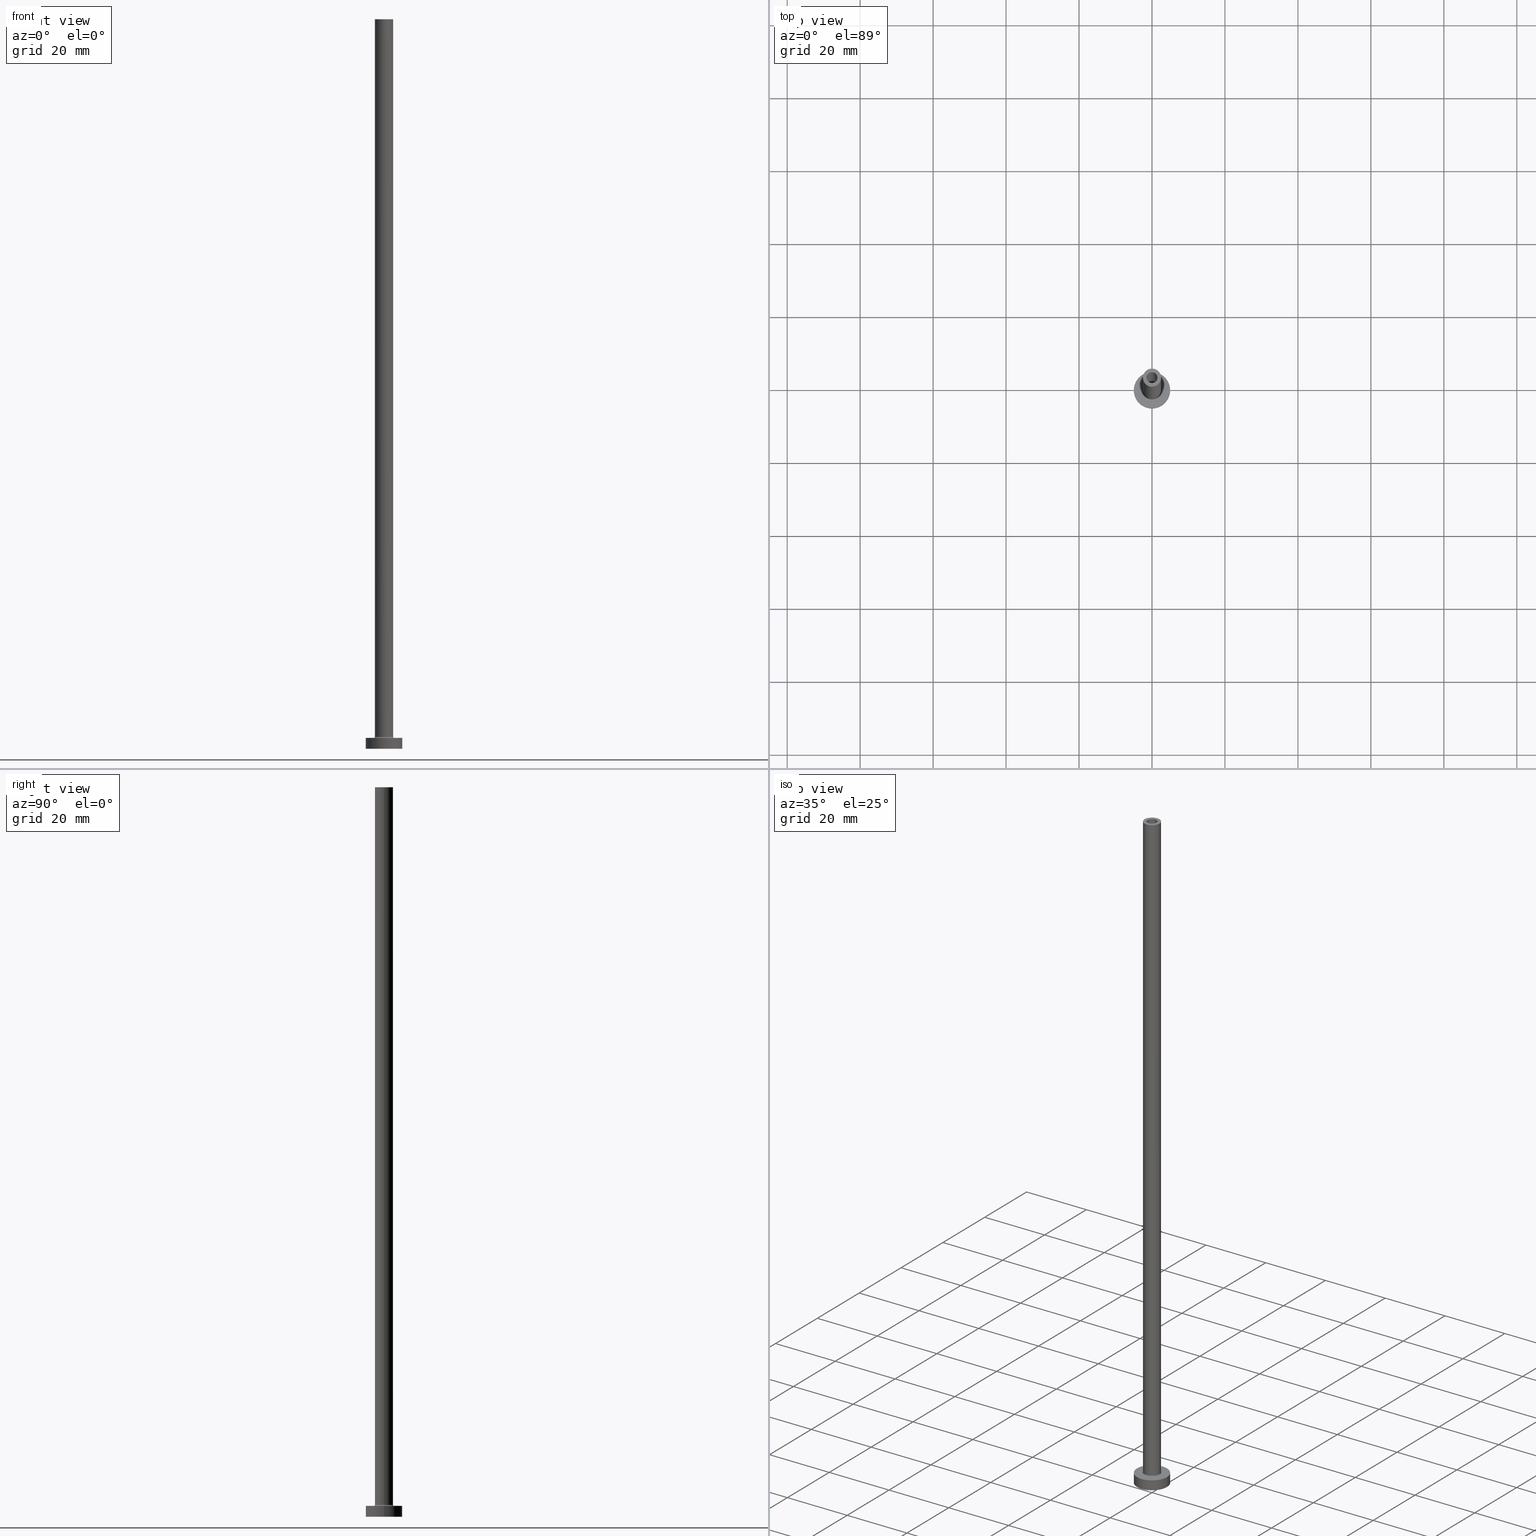
[diagram: canonical four-view strip — front | top / right | iso, engineering-drawing reading convention]
A machine part, canonical four-view strip (front | top / right | iso — engineering-drawing reading convention). The complete STEP part file that produces these views, byte-faithful:
ISO-10303-21;
HEADER;
FILE_DESCRIPTION (( 'STEP AP203' ),
    '1' );
FILE_NAME ('cf21.STEP',
    '2023-02-13T12:03:51',
    ( '' ),
    ( '' ),
    'SwSTEP 2.0',
    'SolidWorks 2019',
    '' );
FILE_SCHEMA (( 'CONFIG_CONTROL_DESIGN' ));
ENDSEC;

DATA;
#1 = AXIS2_PLACEMENT_3D ( 'NONE', #430, #114, #4 ) ;
#2 = DIRECTION ( 'NONE',  ( 1.000000000000000000, 0.000000000000000000, 0.000000000000000000 ) ) ;
#3 = CARTESIAN_POINT ( 'NONE',  ( 0.000000000000000000, 0.000000000000000000, 3.000000000000000000 ) ) ;
#4 = DIRECTION ( 'NONE',  ( -1.000000000000000000, 0.000000000000000000, 0.000000000000000000 ) ) ;
#5 = CARTESIAN_POINT ( 'NONE',  ( 0.000000000000000000, 0.000000000000000000, 3.000000000000000000 ) ) ;
#6 = DIRECTION ( 'NONE',  ( 0.000000000000000000, 0.000000000000000000, 1.000000000000000000 ) ) ;
#7 = ADVANCED_FACE ( 'NONE', ( #422, #147 ), #37, .T. ) ;
#8 = EDGE_LOOP ( 'NONE', ( #197, #441, #93, #438 ) ) ;
#9 = MECHANICAL_CONTEXT ( 'NONE', #85, 'mechanical' ) ;
#10 = DIRECTION ( 'NONE',  ( 1.000000000000000000, 0.000000000000000000, 0.000000000000000000 ) ) ;
#11 = FACE_OUTER_BOUND ( 'NONE', #173, .T. ) ;
#12 = LOCAL_TIME ( 13, 3, 51.00000000000000000, #58 ) ;
#13 = ORIENTED_EDGE ( 'NONE', *, *, #24, .T. ) ;
#14 = FACE_OUTER_BOUND ( 'NONE', #253, .T. ) ;
#15 = APPROVAL_ROLE ( '' ) ;
#16 = EDGE_LOOP ( 'NONE', ( #229, #68 ) ) ;
#17 = CALENDAR_DATE ( 2023, 13, 2 ) ;
#18 = CARTESIAN_POINT ( 'NONE',  ( 1.650000000000000133, 2.020667218593132508E-16, 0.000000000000000000 ) ) ;
#19 = AXIS2_PLACEMENT_3D ( 'NONE', #320, #354, #179 ) ;
#20 = PERSON_AND_ORGANIZATION_ROLE ( 'creator' ) ;
#21 = LOCAL_TIME ( 13, 3, 51.00000000000000000, #306 ) ;
#22 = PERSON_AND_ORGANIZATION ( #51, #103 ) ;
#23 = ORIENTED_EDGE ( 'NONE', *, *, #454, .T. ) ;
#24 = EDGE_CURVE ( 'NONE', #244, #284, #223, .T. ) ;
#25 = PERSON_AND_ORGANIZATION ( #51, #103 ) ;
#26 = EDGE_LOOP ( 'NONE', ( #59, #83 ) ) ;
#27 = FACE_OUTER_BOUND ( 'NONE', #311, .T. ) ;
#28 = CIRCLE ( 'NONE', #112, 5.000000000000000000 ) ;
#29 = EDGE_CURVE ( 'NONE', #327, #166, #248, .T. ) ;
#30 = APPLICATION_CONTEXT ( 'configuration controlled 3d designs of mechanical parts and assemblies' ) ;
#31 = ORIENTED_EDGE ( 'NONE', *, *, #310, .T. ) ;
#32 = VECTOR ( 'NONE', #241, 1000.000000000000000 ) ;
#33 = CARTESIAN_POINT ( 'NONE',  ( -2.500000000000000000, 0.000000000000000000, 3.299999999999997158 ) ) ;
#34 = CARTESIAN_POINT ( 'NONE',  ( 0.000000000000000000, 0.000000000000000000, 155.0000000000000284 ) ) ;
#35 = ADVANCED_FACE ( 'NONE', ( #144 ), #291, .T. ) ;
#36 = DIRECTION ( 'NONE',  ( 0.000000000000000000, 0.000000000000000000, 1.000000000000000000 ) ) ;
#37 = PLANE ( 'NONE',  #46 ) ;
#38 = VERTEX_POINT ( 'NONE', #258 ) ;
#39 = AXIS2_PLACEMENT_3D ( 'NONE', #254, #74, #294 ) ;
#40 = DIRECTION ( 'NONE',  ( 1.000000000000000000, 0.000000000000000000, 0.000000000000000000 ) ) ;
#41 = DIRECTION ( 'NONE',  ( -1.000000000000000000, 1.224646799147353207E-16, 0.000000000000000000 ) ) ;
#42 = EDGE_CURVE ( 'NONE', #382, #338, #297, .T. ) ;
#43 =( LENGTH_UNIT ( ) NAMED_UNIT ( * ) SI_UNIT ( .MILLI., .METRE. ) );
#44 = DIRECTION ( 'NONE',  ( 0.000000000000000000, 0.000000000000000000, 1.000000000000000000 ) ) ;
#45 = DIRECTION ( 'NONE',  ( 0.000000000000000000, 0.000000000000000000, -1.000000000000000000 ) ) ;
#46 = AXIS2_PLACEMENT_3D ( 'NONE', #5, #261, #459 ) ;
#47 = DIRECTION ( 'NONE',  ( 0.000000000000000000, 0.000000000000000000, -1.000000000000000000 ) ) ;
#48 = VERTEX_POINT ( 'NONE', #81 ) ;
#49 = EDGE_CURVE ( 'NONE', #105, #439, #456, .T. ) ;
#50 = CIRCLE ( 'NONE', #313, 1.650000000000000133 ) ;
#51 = PERSON ( 'NEUR�EN�', 'NEUR�EN�', 'NEUR�EN�', ('NEUR�EN�'), ('NEUR�EN�'), ('NEUR�EN�') ) ;
#52 = ORIENTED_EDGE ( 'NONE', *, *, #24, .F. ) ;
#53 = DIRECTION ( 'NONE',  ( -1.000000000000000000, 0.000000000000000000, 0.000000000000000000 ) ) ;
#54 = APPROVAL_DATE_TIME ( #87, #132 ) ;
#55 = CIRCLE ( 'NONE', #174, 0.2999999999999999334 ) ;
#56 = AXIS2_PLACEMENT_3D ( 'NONE', #353, #417, #70 ) ;
#57 = APPROVAL_PERSON_ORGANIZATION ( #159, #71, #15 ) ;
#58 = COORDINATED_UNIVERSAL_TIME_OFFSET ( 1, 0, .AHEAD. ) ;
#59 = ORIENTED_EDGE ( 'NONE', *, *, #287, .F. ) ;
#60 = ORIENTED_EDGE ( 'NONE', *, *, #162, .T. ) ;
#61 = FACE_OUTER_BOUND ( 'NONE', #333, .T. ) ;
#62 = EDGE_CURVE ( 'NONE', #90, #38, #55, .T. ) ;
#63 = LINE ( 'NONE', #193, #32 ) ;
#64 = LINE ( 'NONE', #337, #235 ) ;
#65 = AXIS2_PLACEMENT_3D ( 'NONE', #34, #288, #111 ) ;
#66 = DIRECTION ( 'NONE',  ( 0.000000000000000000, 0.000000000000000000, 1.000000000000000000 ) ) ;
#67 = ORIENTED_EDGE ( 'NONE', *, *, #400, .T. ) ;
#68 = ORIENTED_EDGE ( 'NONE', *, *, #381, .T. ) ;
#69 = PRODUCT ( 'cf21', 'cf21', '', ( #9 ) ) ;
#70 = DIRECTION ( 'NONE',  ( -1.000000000000000000, 0.000000000000000000, 0.000000000000000000 ) ) ;
#71 = APPROVAL ( #308, 'NEUR�EN�' ) ;
#72 = TOROIDAL_SURFACE ( 'NONE', #425, 2.799999999999999822, 0.2999999999999999889 ) ;
#73 = ORIENTED_EDGE ( 'NONE', *, *, #310, .F. ) ;
#74 = DIRECTION ( 'NONE',  ( 0.000000000000000000, 0.000000000000000000, 1.000000000000000000 ) ) ;
#75 = DIRECTION ( 'NONE',  ( 1.000000000000000000, 0.000000000000000000, 0.000000000000000000 ) ) ;
#76 = CARTESIAN_POINT ( 'NONE',  ( 1.500000000000000222, 1.836970198721029934E-16, 200.0000000000000000 ) ) ;
#77 = DIRECTION ( 'NONE',  ( 1.000000000000000000, 0.000000000000000000, -0.000000000000000000 ) ) ;
#78 = ADVANCED_FACE ( 'NONE', ( #185, #120 ), #263, .F. ) ;
#79 = DIRECTION ( 'NONE',  ( 0.000000000000000000, 0.000000000000000000, -1.000000000000000000 ) ) ;
#80 = VERTEX_POINT ( 'NONE', #352 ) ;
#81 = CARTESIAN_POINT ( 'NONE',  ( 2.500000000000000000, 3.061616997868383141E-16, 3.299999999999997158 ) ) ;
#82 = CARTESIAN_POINT ( 'NONE',  ( 0.000000000000000000, 0.000000000000000000, 3.299999999999997158 ) ) ;
#83 = ORIENTED_EDGE ( 'NONE', *, *, #155, .F. ) ;
#84 = DIRECTION ( 'NONE',  ( 0.000000000000000000, 0.000000000000000000, 1.000000000000000000 ) ) ;
#85 = APPLICATION_CONTEXT ( 'configuration controlled 3d designs of mechanical parts and assemblies' ) ;
#86 = ORIENTED_EDGE ( 'NONE', *, *, #62, .T. ) ;
#87 = DATE_AND_TIME ( #17, #104 ) ;
#88 = CARTESIAN_POINT ( 'NONE',  ( -2.500000000000000000, 0.000000000000000000, 200.0000000000000000 ) ) ;
#89 = DIRECTION ( 'NONE',  ( 1.000000000000000000, 0.000000000000000000, 0.000000000000000000 ) ) ;
#90 = VERTEX_POINT ( 'NONE', #33 ) ;
#91 = CALENDAR_DATE ( 2023, 13, 2 ) ;
#92 = AXIS2_PLACEMENT_3D ( 'NONE', #447, #36, #323 ) ;
#93 = ORIENTED_EDGE ( 'NONE', *, *, #135, .T. ) ;
#94 = CARTESIAN_POINT ( 'NONE',  ( -1.650000000000000133, 0.000000000000000000, 159.6669047558312400 ) ) ;
#95 = PERSON_AND_ORGANIZATION ( #51, #103 ) ;
#96 = EDGE_CURVE ( 'NONE', #244, #90, #397, .T. ) ;
#97 = VECTOR ( 'NONE', #79, 1000.000000000000000 ) ;
#98 = CALENDAR_DATE ( 2023, 13, 2 ) ;
#99 = ORIENTED_EDGE ( 'NONE', *, *, #219, .F. ) ;
#100 = ADVANCED_FACE ( 'NONE', ( #124, #365 ), #329, .T. ) ;
#101 = DIRECTION ( 'NONE',  ( 1.000000000000000000, 0.000000000000000000, 0.000000000000000000 ) ) ;
#102 = DIRECTION ( 'NONE',  ( 1.000000000000000000, 0.000000000000000000, -0.000000000000000000 ) ) ;
#103 = ORGANIZATION ( 'NEUR�EN�', 'NEUR�EN�', '' ) ;
#104 = LOCAL_TIME ( 13, 3, 51.00000000000000000, #195 ) ;
#105 = VERTEX_POINT ( 'NONE', #189 ) ;
#106 = EDGE_CURVE ( 'NONE', #305, #38, #215, .T. ) ;
#107 = ORIENTED_EDGE ( 'NONE', *, *, #390, .F. ) ;
#108 = AXIS2_PLACEMENT_3D ( 'NONE', #217, #222, #431 ) ;
#109 = ORIENTED_EDGE ( 'NONE', *, *, #412, .F. ) ;
#110 = APPROVAL_STATUS ( 'not_yet_approved' ) ;
#111 = DIRECTION ( 'NONE',  ( 1.000000000000000000, 0.000000000000000000, 0.000000000000000000 ) ) ;
#112 = AXIS2_PLACEMENT_3D ( 'NONE', #233, #117, #392 ) ;
#113 = SECURITY_CLASSIFICATION ( '', '', #205 ) ;
#114 = DIRECTION ( 'NONE',  ( -0.000000000000000000, -0.000000000000000000, -1.000000000000000000 ) ) ;
#115 = DIRECTION ( 'NONE',  ( -0.000000000000000000, -0.000000000000000000, -1.000000000000000000 ) ) ;
#116 = APPROVAL ( #110, 'NEUR�EN�' ) ;
#117 = DIRECTION ( 'NONE',  ( 0.000000000000000000, 0.000000000000000000, 1.000000000000000000 ) ) ;
#118 = DIRECTION ( 'NONE',  ( 1.000000000000000000, 0.000000000000000000, 0.000000000000000000 ) ) ;
#119 = CARTESIAN_POINT ( 'NONE',  ( -1.500000000000000222, 0.000000000000000000, 200.0000000000000000 ) ) ;
#120 = FACE_OUTER_BOUND ( 'NONE', #324, .T. ) ;
#121 = CIRCLE ( 'NONE', #170, 2.500000000000000000 ) ;
#122 = DIRECTION ( 'NONE',  ( -1.000000000000000000, 0.000000000000000000, 0.000000000000000000 ) ) ;
#123 = ORIENTED_EDGE ( 'NONE', *, *, #282, .F. ) ;
#124 = FACE_BOUND ( 'NONE', #26, .T. ) ;
#125 = VERTEX_POINT ( 'NONE', #298 ) ;
#126 = COORDINATED_UNIVERSAL_TIME_OFFSET ( 1, 0, .AHEAD. ) ;
#127 = EDGE_LOOP ( 'NONE', ( #387, #299, #344, #73 ) ) ;
#128 = ORIENTED_EDGE ( 'NONE', *, *, #162, .F. ) ;
#129 = CIRCLE ( 'NONE', #374, 2.500000000000000000 ) ;
#130 = DIRECTION ( 'NONE',  ( 0.000000000000000000, 0.000000000000000000, -1.000000000000000000 ) ) ;
#131 = PRODUCT_DEFINITION_FORMATION_WITH_SPECIFIED_SOURCE ( 'LIBOVOLN�', '', #69, .NOT_KNOWN. ) ;
#132 = APPROVAL ( #273, 'NEUR�EN�' ) ;
#133 = DIRECTION ( 'NONE',  ( 1.000000000000000000, 0.000000000000000000, 0.000000000000000000 ) ) ;
#134 = PERSON_AND_ORGANIZATION_ROLE ( 'classification_officer' ) ;
#135 = EDGE_CURVE ( 'NONE', #451, #183, #432, .T. ) ;
#136 = AXIS2_PLACEMENT_3D ( 'NONE', #413, #161, #207 ) ;
#137 = FACE_BOUND ( 'NONE', #16, .T. ) ;
#138 = CARTESIAN_POINT ( 'NONE',  ( 0.000000000000000000, 0.000000000000000000, 3.299999999999997158 ) ) ;
#139 = ADVANCED_FACE ( 'NONE', ( #190 ), #446, .F. ) ;
#140 = CARTESIAN_POINT ( 'NONE',  ( -1.650000000000000133, 0.000000000000000000, 155.0000000000000284 ) ) ;
#141 = AXIS2_PLACEMENT_3D ( 'NONE', #270, #6, #77 ) ;
#142 = ORIENTED_EDGE ( 'NONE', *, *, #287, .T. ) ;
#143 = CARTESIAN_POINT ( 'NONE',  ( 0.000000000000000000, 0.000000000000000000, 200.0000000000000000 ) ) ;
#144 = FACE_OUTER_BOUND ( 'NONE', #154, .T. ) ;
#145 = AXIS2_PLACEMENT_3D ( 'NONE', #455, #378, #101 ) ;
#146 = DIRECTION ( 'NONE',  ( -0.000000000000000000, -0.000000000000000000, -1.000000000000000000 ) ) ;
#147 = FACE_OUTER_BOUND ( 'NONE', #307, .T. ) ;
#148 = APPLICATION_PROTOCOL_DEFINITION ( 'international standard', 'config_control_design', 1994, #30 ) ;
#149 = DIRECTION ( 'NONE',  ( 1.000000000000000000, 0.000000000000000000, 0.000000000000000000 ) ) ;
#150 = FACE_OUTER_BOUND ( 'NONE', #206, .T. ) ;
#151 = ORIENTED_EDGE ( 'NONE', *, *, #96, .T. ) ;
#152 =( NAMED_UNIT ( * ) PLANE_ANGLE_UNIT ( ) SI_UNIT ( $, .RADIAN. ) );
#153 = DIRECTION ( 'NONE',  ( 1.000000000000000000, 0.000000000000000000, 0.000000000000000000 ) ) ;
#154 = EDGE_LOOP ( 'NONE', ( #107, #362, #238, #342 ) ) ;
#155 = EDGE_CURVE ( 'NONE', #382, #451, #243, .T. ) ;
#156 = CIRCLE ( 'NONE', #351, 5.000000000000000000 ) ;
#157 = DIRECTION ( 'NONE',  ( -1.000000000000000000, 0.000000000000000000, 0.000000000000000000 ) ) ;
#158 = DIRECTION ( 'NONE',  ( 0.000000000000000000, 0.000000000000000000, -1.000000000000000000 ) ) ;
#159 = PERSON_AND_ORGANIZATION ( #51, #103 ) ;
#160 = DATE_AND_TIME ( #335, #21 ) ;
#161 = DIRECTION ( 'NONE',  ( 0.000000000000000000, 0.000000000000000000, 1.000000000000000000 ) ) ;
#162 = EDGE_CURVE ( 'NONE', #80, #327, #232, .T. ) ;
#163 = CYLINDRICAL_SURFACE ( 'NONE', #340, 5.000000000000000000 ) ;
#164 = VECTOR ( 'NONE', #375, 1000.000000000000000 ) ;
#165 = DATE_TIME_ROLE ( 'creation_date' ) ;
#166 = VERTEX_POINT ( 'NONE', #405 ) ;
#167 = ORIENTED_EDGE ( 'NONE', *, *, #208, .F. ) ;
#168 = AXIS2_PLACEMENT_3D ( 'NONE', #228, #44, #188 ) ;
#169 = CARTESIAN_POINT ( 'NONE',  ( 2.799999999999999822, 0.000000000000000000, 2.999999999999998668 ) ) ;
#170 = AXIS2_PLACEMENT_3D ( 'NONE', #230, #84, #2 ) ;
#171 = APPROVAL_PERSON_ORGANIZATION ( #25, #132, #269 ) ;
#172 = PLANE ( 'NONE',  #404 ) ;
#173 = EDGE_LOOP ( 'NONE', ( #302, #52, #151, #349 ) ) ;
#174 = AXIS2_PLACEMENT_3D ( 'NONE', #295, #428, #41 ) ;
#175 = AXIS2_PLACEMENT_3D ( 'NONE', #389, #292, #251 ) ;
#176 = EDGE_CURVE ( 'NONE', #421, #125, #236, .T. ) ;
#177 = PRODUCT_DEFINITION_SHAPE ( 'NONE', 'NONE',  #317 ) ;
#178 = FACE_OUTER_BOUND ( 'NONE', #127, .T. ) ;
#179 = DIRECTION ( 'NONE',  ( 1.000000000000000000, 0.000000000000000000, 0.000000000000000000 ) ) ;
#180 = CARTESIAN_POINT ( 'NONE',  ( 0.000000000000000000, 0.000000000000000000, 3.000000000000000000 ) ) ;
#181 = AXIS2_PLACEMENT_3D ( 'NONE', #283, #379, #410 ) ;
#182 = DIRECTION ( 'NONE',  ( 1.000000000000000000, 0.000000000000000000, 0.000000000000000000 ) ) ;
#183 = VERTEX_POINT ( 'NONE', #383 ) ;
#184 = PERSON_AND_ORGANIZATION_ROLE ( 'design_owner' ) ;
#185 = FACE_BOUND ( 'NONE', #265, .T. ) ;
#186 = ORIENTED_EDGE ( 'NONE', *, *, #366, .T. ) ;
#187 = CARTESIAN_POINT ( 'NONE',  ( 0.000000000000000000, 0.000000000000000000, 0.000000000000000000 ) ) ;
#188 = DIRECTION ( 'NONE',  ( 1.000000000000000000, 0.000000000000000000, -0.000000000000000000 ) ) ;
#189 = CARTESIAN_POINT ( 'NONE',  ( 5.000000000000000000, 6.123233995736766282E-16, 0.000000000000000000 ) ) ;
#190 = FACE_OUTER_BOUND ( 'NONE', #393, .T. ) ;
#191 = CARTESIAN_POINT ( 'NONE',  ( 1.500000000000000222, 1.836970198721029934E-16, 200.0000000000000000 ) ) ;
#192 = VERTEX_POINT ( 'NONE', #140 ) ;
#193 = CARTESIAN_POINT ( 'NONE',  ( 2.500000000000000000, 3.061616997868383141E-16, 200.0000000000000000 ) ) ;
#194 = VECTOR ( 'NONE', #274, 1000.000000000000000 ) ;
#195 = COORDINATED_UNIVERSAL_TIME_OFFSET ( 1, 0, .AHEAD. ) ;
#196 = DIRECTION ( 'NONE',  ( -0.000000000000000000, -0.000000000000000000, -1.000000000000000000 ) ) ;
#197 = ORIENTED_EDGE ( 'NONE', *, *, #42, .F. ) ;
#198 = CARTESIAN_POINT ( 'NONE',  ( 2.500000000000000000, 3.061616997868383141E-16, 200.0000000000000000 ) ) ;
#199 = ADVANCED_FACE ( 'NONE', ( #318 ), #384, .F. ) ;
#200 = CARTESIAN_POINT ( 'NONE',  ( 2.799999999999999822, 0.000000000000000000, 3.299999999999997158 ) ) ;
#201 = AXIS2_PLACEMENT_3D ( 'NONE', #395, #115, #356 ) ;
#202 = PERSON_AND_ORGANIZATION ( #51, #103 ) ;
#203 = CARTESIAN_POINT ( 'NONE',  ( -1.500000000000000222, 0.000000000000000000, 200.0000000000000000 ) ) ;
#204 = CIRCLE ( 'NONE', #256, 0.2999999999999999334 ) ;
#205 = SECURITY_CLASSIFICATION_LEVEL ( 'unclassified' ) ;
#206 = EDGE_LOOP ( 'NONE', ( #99, #86, #408, #331 ) ) ;
#207 = DIRECTION ( 'NONE',  ( 1.000000000000000000, 0.000000000000000000, 0.000000000000000000 ) ) ;
#208 = EDGE_CURVE ( 'NONE', #183, #338, #380, .T. ) ;
#209 = CARTESIAN_POINT ( 'NONE',  ( 5.000000000000000000, 6.123233995736766282E-16, 3.000000000000000000 ) ) ;
#210 = AXIS2_PLACEMENT_3D ( 'NONE', #180, #424, #157 ) ;
#211 = CARTESIAN_POINT ( 'NONE',  ( -2.500000000000000000, 0.000000000000000000, 200.0000000000000000 ) ) ;
#212 = CC_DESIGN_DATE_AND_TIME_ASSIGNMENT ( #343, #237, ( #113 ) ) ;
#213 = ORIENTED_EDGE ( 'NONE', *, *, #135, .F. ) ;
#214 = AXIS2_PLACEMENT_3D ( 'NONE', #3, #326, #10 ) ;
#215 = CIRCLE ( 'NONE', #214, 2.799999999999999822 ) ;
#216 = MANIFOLD_SOLID_BREP ( 'Odebrat vysunut�m4', #285 ) ;
#217 = CARTESIAN_POINT ( 'NONE',  ( 0.000000000000000000, 0.000000000000000000, 0.000000000000000000 ) ) ;
#218 =( GEOMETRIC_REPRESENTATION_CONTEXT ( 3 ) GLOBAL_UNCERTAINTY_ASSIGNED_CONTEXT ( ( #246 ) ) GLOBAL_UNIT_ASSIGNED_CONTEXT ( ( #43, #152, #386 ) ) REPRESENTATION_CONTEXT ( 'NONE', 'WORKASPACE' ) );
#219 = EDGE_CURVE ( 'NONE', #90, #48, #293, .T. ) ;
#220 = COORDINATED_UNIVERSAL_TIME_OFFSET ( 1, 0, .AHEAD. ) ;
#221 = ORIENTED_EDGE ( 'NONE', *, *, #249, .F. ) ;
#222 = DIRECTION ( 'NONE',  ( 0.000000000000000000, 0.000000000000000000, 1.000000000000000000 ) ) ;
#223 = CIRCLE ( 'NONE', #460, 2.500000000000000000 ) ;
#224 = PERSON_AND_ORGANIZATION ( #51, #103 ) ;
#225 = CC_DESIGN_APPROVAL ( #116, ( #317 ) ) ;
#226 = ORIENTED_EDGE ( 'NONE', *, *, #42, .T. ) ;
#227 = CARTESIAN_POINT ( 'NONE',  ( 0.000000000000000000, 0.000000000000000000, 3.299999999999997158 ) ) ;
#228 = CARTESIAN_POINT ( 'NONE',  ( 0.000000000000000000, 0.000000000000000000, 0.000000000000000000 ) ) ;
#229 = ORIENTED_EDGE ( 'NONE', *, *, #208, .T. ) ;
#230 = CARTESIAN_POINT ( 'NONE',  ( 0.000000000000000000, 0.000000000000000000, 200.0000000000000000 ) ) ;
#231 = ORIENTED_EDGE ( 'NONE', *, *, #29, .T. ) ;
#232 = LINE ( 'NONE', #367, #194 ) ;
#233 = CARTESIAN_POINT ( 'NONE',  ( 0.000000000000000000, 0.000000000000000000, 3.000000000000000000 ) ) ;
#234 = ADVANCED_FACE ( 'NONE', ( #137, #61 ), #172, .F. ) ;
#235 = VECTOR ( 'NONE', #196, 1000.000000000000000 ) ;
#236 = CIRCLE ( 'NONE', #175, 5.000000000000000000 ) ;
#237 = DATE_TIME_ROLE ( 'classification_date' ) ;
#238 = ORIENTED_EDGE ( 'NONE', *, *, #412, .T. ) ;
#239 = DATE_AND_TIME ( #98, #415 ) ;
#240 = VECTOR ( 'NONE', #361, 1000.000000000000000 ) ;
#241 = DIRECTION ( 'NONE',  ( -0.000000000000000000, -0.000000000000000000, -1.000000000000000000 ) ) ;
#242 = DATE_AND_TIME ( #449, #12 ) ;
#243 = CIRCLE ( 'NONE', #264, 1.500000000000000222 ) ;
#244 = VERTEX_POINT ( 'NONE', #211 ) ;
#245 = EDGE_CURVE ( 'NONE', #284, #48, #63, .T. ) ;
#246 = UNCERTAINTY_MEASURE_WITH_UNIT (LENGTH_MEASURE( 1.000000000000000082E-05 ), #43, 'distance_accuracy_value', 'NONE');
#247 = ADVANCED_BREP_SHAPE_REPRESENTATION ( 'cf21', ( #216, #39 ), #218 ) ;
#248 = CIRCLE ( 'NONE', #19, 1.650000000000000133 ) ;
#249 = EDGE_CURVE ( 'NONE', #192, #166, #409, .T. ) ;
#250 = ORIENTED_EDGE ( 'NONE', *, *, #390, .T. ) ;
#251 = DIRECTION ( 'NONE',  ( 1.000000000000000000, 0.000000000000000000, 0.000000000000000000 ) ) ;
#252 = ORIENTED_EDGE ( 'NONE', *, *, #339, .T. ) ;
#253 = EDGE_LOOP ( 'NONE', ( #123, #402, #31, #252 ) ) ;
#254 = CARTESIAN_POINT ( 'NONE',  ( 0.000000000000000000, 0.000000000000000000, 0.000000000000000000 ) ) ;
#255 = CARTESIAN_POINT ( 'NONE',  ( 0.000000000000000000, 0.000000000000000000, 200.0000000000000000 ) ) ;
#256 = AXIS2_PLACEMENT_3D ( 'NONE', #200, #336, #130 ) ;
#257 = CARTESIAN_POINT ( 'NONE',  ( 0.000000000000000000, 0.000000000000000000, 3.000000000000000000 ) ) ;
#258 = CARTESIAN_POINT ( 'NONE',  ( -2.799999999999999822, 3.429011037612589276E-16, 2.999999999999998668 ) ) ;
#259 = DIRECTION ( 'NONE',  ( 0.000000000000000000, 0.000000000000000000, 1.000000000000000000 ) ) ;
#260 = CYLINDRICAL_SURFACE ( 'NONE', #210, 5.000000000000000000 ) ;
#261 = DIRECTION ( 'NONE',  ( 0.000000000000000000, 0.000000000000000000, 1.000000000000000000 ) ) ;
#262 = PRODUCT_RELATED_PRODUCT_CATEGORY ( 'detail', '', ( #69 ) ) ;
#263 = PLANE ( 'NONE',  #168 ) ;
#264 = AXIS2_PLACEMENT_3D ( 'NONE', #267, #272, #89 ) ;
#265 = EDGE_LOOP ( 'NONE', ( #280, #275 ) ) ;
#266 = APPROVAL_ROLE ( '' ) ;
#267 = CARTESIAN_POINT ( 'NONE',  ( 0.000000000000000000, 0.000000000000000000, 200.0000000000000000 ) ) ;
#268 = FACE_OUTER_BOUND ( 'NONE', #414, .T. ) ;
#269 = APPROVAL_ROLE ( '' ) ;
#270 = CARTESIAN_POINT ( 'NONE',  ( 0.000000000000000000, 0.000000000000000000, 200.0000000000000000 ) ) ;
#271 = ADVANCED_FACE ( 'NONE', ( #27 ), #72, .F. ) ;
#272 = DIRECTION ( 'NONE',  ( 0.000000000000000000, 0.000000000000000000, 1.000000000000000000 ) ) ;
#273 = APPROVAL_STATUS ( 'not_yet_approved' ) ;
#274 = DIRECTION ( 'NONE',  ( 0.000000000000000000, 0.000000000000000000, -1.000000000000000000 ) ) ;
#275 = ORIENTED_EDGE ( 'NONE', *, *, #29, .F. ) ;
#276 = CIRCLE ( 'NONE', #286, 1.650000000000000133 ) ;
#277 = CC_DESIGN_APPROVAL ( #71, ( #131 ) ) ;
#278 = PERSON_AND_ORGANIZATION_ROLE ( 'creator' ) ;
#279 = DIRECTION ( 'NONE',  ( 0.000000000000000000, 0.000000000000000000, -1.000000000000000000 ) ) ;
#280 = ORIENTED_EDGE ( 'NONE', *, *, #454, .F. ) ;
#281 = VECTOR ( 'NONE', #45, 1000.000000000000000 ) ;
#282 = EDGE_CURVE ( 'NONE', #125, #105, #448, .T. ) ;
#283 = CARTESIAN_POINT ( 'NONE',  ( 0.000000000000000000, 0.000000000000000000, 200.0000000000000000 ) ) ;
#284 = VERTEX_POINT ( 'NONE', #198 ) ;
#285 = CLOSED_SHELL ( 'NONE', ( #139, #377, #332, #35, #420, #345, #7, #78, #443, #100, #271, #199, #234, #434 ) ) ;
#286 = AXIS2_PLACEMENT_3D ( 'NONE', #187, #391, #75 ) ;
#287 = EDGE_CURVE ( 'NONE', #451, #382, #423, .T. ) ;
#288 = DIRECTION ( 'NONE',  ( 0.000000000000000000, 0.000000000000000000, 1.000000000000000000 ) ) ;
#289 = DIRECTION ( 'NONE',  ( 1.000000000000000000, 0.000000000000000000, 0.000000000000000000 ) ) ;
#290 = CYLINDRICAL_SURFACE ( 'NONE', #1, 2.500000000000000000 ) ;
#291 = CYLINDRICAL_SURFACE ( 'NONE', #201, 2.500000000000000000 ) ;
#292 = DIRECTION ( 'NONE',  ( 0.000000000000000000, 0.000000000000000000, 1.000000000000000000 ) ) ;
#293 = CIRCLE ( 'NONE', #145, 2.500000000000000000 ) ;
#294 = DIRECTION ( 'NONE',  ( 1.000000000000000000, 0.000000000000000000, 0.000000000000000000 ) ) ;
#295 = CARTESIAN_POINT ( 'NONE',  ( -2.799999999999999822, 3.429011037612588783E-16, 3.299999999999997158 ) ) ;
#296 = CC_DESIGN_PERSON_AND_ORGANIZATION_ASSIGNMENT ( #202, #134, ( #113 ) ) ;
#297 = LINE ( 'NONE', #76, #97 ) ;
#298 = CARTESIAN_POINT ( 'NONE',  ( 5.000000000000000000, 6.123233995736766282E-16, 3.000000000000000000 ) ) ;
#299 = ORIENTED_EDGE ( 'NONE', *, *, #282, .T. ) ;
#300 = DIRECTION ( 'NONE',  ( -1.000000000000000000, 0.000000000000000000, 0.000000000000000000 ) ) ;
#301 = CIRCLE ( 'NONE', #136, 1.650000000000000133 ) ;
#302 = ORIENTED_EDGE ( 'NONE', *, *, #245, .F. ) ;
#303 = EDGE_CURVE ( 'NONE', #192, #80, #301, .T. ) ;
#304 = CARTESIAN_POINT ( 'NONE',  ( 0.000000000000000000, 0.000000000000000000, 200.0000000000000000 ) ) ;
#305 = VERTEX_POINT ( 'NONE', #169 ) ;
#306 = COORDINATED_UNIVERSAL_TIME_OFFSET ( 1, 0, .AHEAD. ) ;
#307 = EDGE_LOOP ( 'NONE', ( #440, #435 ) ) ;
#308 = APPROVAL_STATUS ( 'not_yet_approved' ) ;
#309 = PERSON_AND_ORGANIZATION ( #51, #103 ) ;
#310 = EDGE_CURVE ( 'NONE', #421, #439, #64, .T. ) ;
#311 = EDGE_LOOP ( 'NONE', ( #315, #109, #348, #312 ) ) ;
#312 = ORIENTED_EDGE ( 'NONE', *, *, #400, .F. ) ;
#313 = AXIS2_PLACEMENT_3D ( 'NONE', #399, #416, #289 ) ;
#314 = EDGE_CURVE ( 'NONE', #48, #305, #204, .T. ) ;
#315 = ORIENTED_EDGE ( 'NONE', *, *, #62, .F. ) ;
#316 = AXIS2_PLACEMENT_3D ( 'NONE', #82, #325, #153 ) ;
#317 = PRODUCT_DEFINITION ( 'NEZN�M�', '', #131, #370 ) ;
#318 = FACE_OUTER_BOUND ( 'NONE', #334, .T. ) ;
#319 = DIRECTION ( 'NONE',  ( 0.000000000000000000, 0.000000000000000000, 1.000000000000000000 ) ) ;
#320 = CARTESIAN_POINT ( 'NONE',  ( 0.000000000000000000, 0.000000000000000000, 0.000000000000000000 ) ) ;
#321 = CC_DESIGN_DATE_AND_TIME_ASSIGNMENT ( #160, #165, ( #317 ) ) ;
#322 = AXIS2_PLACEMENT_3D ( 'NONE', #418, #158, #53 ) ;
#323 = DIRECTION ( 'NONE',  ( 1.000000000000000000, 0.000000000000000000, 0.000000000000000000 ) ) ;
#324 = EDGE_LOOP ( 'NONE', ( #452, #411 ) ) ;
#325 = DIRECTION ( 'NONE',  ( 0.000000000000000000, 0.000000000000000000, 1.000000000000000000 ) ) ;
#326 = DIRECTION ( 'NONE',  ( -0.000000000000000000, -0.000000000000000000, -1.000000000000000000 ) ) ;
#327 = VERTEX_POINT ( 'NONE', #18 ) ;
#328 = CARTESIAN_POINT ( 'NONE',  ( -5.000000000000000000, 0.000000000000000000, 0.000000000000000000 ) ) ;
#329 = PLANE ( 'NONE',  #141 ) ;
#330 = AXIS2_PLACEMENT_3D ( 'NONE', #143, #47, #122 ) ;
#331 = ORIENTED_EDGE ( 'NONE', *, *, #314, .F. ) ;
#332 = ADVANCED_FACE ( 'NONE', ( #150 ), #398, .F. ) ;
#333 = EDGE_LOOP ( 'NONE', ( #406, #458 ) ) ;
#334 = EDGE_LOOP ( 'NONE', ( #128, #186, #363, #23 ) ) ;
#335 = CALENDAR_DATE ( 2023, 13, 2 ) ;
#336 = DIRECTION ( 'NONE',  ( 0.000000000000000000, -1.000000000000000000, 0.000000000000000000 ) ) ;
#337 = CARTESIAN_POINT ( 'NONE',  ( -5.000000000000000000, 0.000000000000000000, 3.000000000000000000 ) ) ;
#338 = VERTEX_POINT ( 'NONE', #396 ) ;
#339 = EDGE_CURVE ( 'NONE', #439, #105, #156, .T. ) ;
#340 = AXIS2_PLACEMENT_3D ( 'NONE', #444, #429, #419 ) ;
#341 = APPROVAL_DATE_TIME ( #242, #71 ) ;
#342 = ORIENTED_EDGE ( 'NONE', *, *, #96, .F. ) ;
#343 = DATE_AND_TIME ( #91, #369 ) ;
#344 = ORIENTED_EDGE ( 'NONE', *, *, #49, .T. ) ;
#345 = ADVANCED_FACE ( 'NONE', ( #14 ), #163, .T. ) ;
#346 = CARTESIAN_POINT ( 'NONE',  ( 0.000000000000000000, 0.000000000000000000, 155.0000000000000284 ) ) ;
#347 = AXIS2_PLACEMENT_3D ( 'NONE', #257, #146, #118 ) ;
#348 = ORIENTED_EDGE ( 'NONE', *, *, #314, .T. ) ;
#349 = ORIENTED_EDGE ( 'NONE', *, *, #219, .T. ) ;
#350 = EDGE_CURVE ( 'NONE', #125, #421, #28, .T. ) ;
#351 = AXIS2_PLACEMENT_3D ( 'NONE', #385, #259, #182 ) ;
#352 = CARTESIAN_POINT ( 'NONE',  ( 1.650000000000000133, 2.020667218593132508E-16, 155.0000000000000284 ) ) ;
#353 = CARTESIAN_POINT ( 'NONE',  ( 0.000000000000000000, 0.000000000000000000, 159.6669047558312400 ) ) ;
#354 = DIRECTION ( 'NONE',  ( -0.000000000000000000, -0.000000000000000000, -1.000000000000000000 ) ) ;
#355 = CC_DESIGN_PERSON_AND_ORGANIZATION_ASSIGNMENT ( #224, #184, ( #69 ) ) ;
#356 = DIRECTION ( 'NONE',  ( -1.000000000000000000, 0.000000000000000000, 0.000000000000000000 ) ) ;
#357 = ORIENTED_EDGE ( 'NONE', *, *, #303, .T. ) ;
#358 = CARTESIAN_POINT ( 'NONE',  ( -5.000000000000000000, 0.000000000000000000, 3.000000000000000000 ) ) ;
#359 = APPROVAL_PERSON_ORGANIZATION ( #436, #116, #266 ) ;
#360 = CC_DESIGN_SECURITY_CLASSIFICATION ( #113, ( #131 ) ) ;
#361 = DIRECTION ( 'NONE',  ( -0.000000000000000000, -0.000000000000000000, -1.000000000000000000 ) ) ;
#362 = ORIENTED_EDGE ( 'NONE', *, *, #245, .T. ) ;
#363 = ORIENTED_EDGE ( 'NONE', *, *, #249, .T. ) ;
#364 = APPLICATION_PROTOCOL_DEFINITION ( 'international standard', 'config_control_design', 1994, #85 ) ;
#365 = FACE_OUTER_BOUND ( 'NONE', #433, .T. ) ;
#366 = EDGE_CURVE ( 'NONE', #80, #192, #50, .T. ) ;
#367 = CARTESIAN_POINT ( 'NONE',  ( 1.650000000000000133, 2.020667218593132508E-16, 159.6669047558312400 ) ) ;
#368 = CIRCLE ( 'NONE', #92, 1.500000000000000222 ) ;
#369 = LOCAL_TIME ( 13, 3, 51.00000000000000000, #126 ) ;
#370 = DESIGN_CONTEXT ( 'detailed design', #30, 'design' ) ;
#371 = ORIENTED_EDGE ( 'NONE', *, *, #106, .T. ) ;
#372 = CC_DESIGN_PERSON_AND_ORGANIZATION_ASSIGNMENT ( #95, #442, ( #131 ) ) ;
#373 = DIRECTION ( 'NONE',  ( -0.000000000000000000, -0.000000000000000000, -1.000000000000000000 ) ) ;
#374 = AXIS2_PLACEMENT_3D ( 'NONE', #227, #319, #40 ) ;
#375 = DIRECTION ( 'NONE',  ( 0.000000000000000000, 0.000000000000000000, -1.000000000000000000 ) ) ;
#376 = APPROVAL_DATE_TIME ( #239, #116 ) ;
#377 = ADVANCED_FACE ( 'NONE', ( #268 ), #401, .F. ) ;
#378 = DIRECTION ( 'NONE',  ( 0.000000000000000000, 0.000000000000000000, 1.000000000000000000 ) ) ;
#379 = DIRECTION ( 'NONE',  ( 0.000000000000000000, 0.000000000000000000, 1.000000000000000000 ) ) ;
#380 = CIRCLE ( 'NONE', #65, 1.500000000000000222 ) ;
#381 = EDGE_CURVE ( 'NONE', #338, #183, #368, .T. ) ;
#382 = VERTEX_POINT ( 'NONE', #191 ) ;
#383 = CARTESIAN_POINT ( 'NONE',  ( -1.500000000000000222, 0.000000000000000000, 155.0000000000000284 ) ) ;
#384 = CYLINDRICAL_SURFACE ( 'NONE', #56, 1.650000000000000133 ) ;
#385 = CARTESIAN_POINT ( 'NONE',  ( 0.000000000000000000, 0.000000000000000000, 0.000000000000000000 ) ) ;
#386 =( NAMED_UNIT ( * ) SI_UNIT ( $, .STERADIAN. ) SOLID_ANGLE_UNIT ( ) );
#387 = ORIENTED_EDGE ( 'NONE', *, *, #350, .F. ) ;
#388 = DIRECTION ( 'NONE',  ( 0.000000000000000000, 0.000000000000000000, 1.000000000000000000 ) ) ;
#389 = CARTESIAN_POINT ( 'NONE',  ( 0.000000000000000000, 0.000000000000000000, 3.000000000000000000 ) ) ;
#390 = EDGE_CURVE ( 'NONE', #284, #244, #121, .T. ) ;
#391 = DIRECTION ( 'NONE',  ( -0.000000000000000000, -0.000000000000000000, -1.000000000000000000 ) ) ;
#392 = DIRECTION ( 'NONE',  ( 1.000000000000000000, 0.000000000000000000, 0.000000000000000000 ) ) ;
#393 = EDGE_LOOP ( 'NONE', ( #142, #226, #167, #213 ) ) ;
#394 = EDGE_LOOP ( 'NONE', ( #371, #67 ) ) ;
#395 = CARTESIAN_POINT ( 'NONE',  ( 0.000000000000000000, 0.000000000000000000, 200.0000000000000000 ) ) ;
#396 = CARTESIAN_POINT ( 'NONE',  ( 1.500000000000000222, 1.836970198721029934E-16, 155.0000000000000284 ) ) ;
#397 = LINE ( 'NONE', #88, #240 ) ;
#398 = TOROIDAL_SURFACE ( 'NONE', #316, 2.799999999999999822, 0.2999999999999999889 ) ;
#399 = CARTESIAN_POINT ( 'NONE',  ( 0.000000000000000000, 0.000000000000000000, 155.0000000000000284 ) ) ;
#400 = EDGE_CURVE ( 'NONE', #38, #305, #445, .T. ) ;
#401 = CYLINDRICAL_SURFACE ( 'NONE', #322, 1.650000000000000133 ) ;
#402 = ORIENTED_EDGE ( 'NONE', *, *, #176, .F. ) ;
#403 = SHAPE_DEFINITION_REPRESENTATION ( #177, #247 ) ;
#404 = AXIS2_PLACEMENT_3D ( 'NONE', #346, #66, #102 ) ;
#405 = CARTESIAN_POINT ( 'NONE',  ( -1.650000000000000133, 0.000000000000000000, 0.000000000000000000 ) ) ;
#406 = ORIENTED_EDGE ( 'NONE', *, *, #303, .F. ) ;
#407 = CC_DESIGN_PERSON_AND_ORGANIZATION_ASSIGNMENT ( #22, #278, ( #317 ) ) ;
#408 = ORIENTED_EDGE ( 'NONE', *, *, #106, .F. ) ;
#409 = LINE ( 'NONE', #94, #164 ) ;
#410 = DIRECTION ( 'NONE',  ( 1.000000000000000000, 0.000000000000000000, 0.000000000000000000 ) ) ;
#411 = ORIENTED_EDGE ( 'NONE', *, *, #49, .F. ) ;
#412 = EDGE_CURVE ( 'NONE', #48, #90, #129, .T. ) ;
#413 = CARTESIAN_POINT ( 'NONE',  ( 0.000000000000000000, 0.000000000000000000, 155.0000000000000284 ) ) ;
#414 = EDGE_LOOP ( 'NONE', ( #357, #60, #231, #221 ) ) ;
#415 = LOCAL_TIME ( 13, 3, 51.00000000000000000, #220 ) ;
#416 = DIRECTION ( 'NONE',  ( 0.000000000000000000, 0.000000000000000000, 1.000000000000000000 ) ) ;
#417 = DIRECTION ( 'NONE',  ( 0.000000000000000000, 0.000000000000000000, -1.000000000000000000 ) ) ;
#418 = CARTESIAN_POINT ( 'NONE',  ( 0.000000000000000000, 0.000000000000000000, 159.6669047558312400 ) ) ;
#419 = DIRECTION ( 'NONE',  ( -1.000000000000000000, 0.000000000000000000, 0.000000000000000000 ) ) ;
#420 = ADVANCED_FACE ( 'NONE', ( #178 ), #260, .T. ) ;
#421 = VERTEX_POINT ( 'NONE', #358 ) ;
#422 = FACE_BOUND ( 'NONE', #394, .T. ) ;
#423 = CIRCLE ( 'NONE', #181, 1.500000000000000222 ) ;
#424 = DIRECTION ( 'NONE',  ( -0.000000000000000000, -0.000000000000000000, -1.000000000000000000 ) ) ;
#425 = AXIS2_PLACEMENT_3D ( 'NONE', #138, #453, #133 ) ;
#426 = CC_DESIGN_APPROVAL ( #132, ( #113 ) ) ;
#427 = CYLINDRICAL_SURFACE ( 'NONE', #330, 1.500000000000000222 ) ;
#428 = DIRECTION ( 'NONE',  ( 1.224646799147353207E-16, 1.000000000000000000, -0.000000000000000000 ) ) ;
#429 = DIRECTION ( 'NONE',  ( -0.000000000000000000, -0.000000000000000000, -1.000000000000000000 ) ) ;
#430 = CARTESIAN_POINT ( 'NONE',  ( 0.000000000000000000, 0.000000000000000000, 200.0000000000000000 ) ) ;
#431 = DIRECTION ( 'NONE',  ( 1.000000000000000000, 0.000000000000000000, 0.000000000000000000 ) ) ;
#432 = LINE ( 'NONE', #203, #281 ) ;
#433 = EDGE_LOOP ( 'NONE', ( #13, #250 ) ) ;
#434 = ADVANCED_FACE ( 'NONE', ( #461 ), #427, .F. ) ;
#435 = ORIENTED_EDGE ( 'NONE', *, *, #350, .T. ) ;
#436 = PERSON_AND_ORGANIZATION ( #51, #103 ) ;
#437 = VECTOR ( 'NONE', #373, 1000.000000000000000 ) ;
#438 = ORIENTED_EDGE ( 'NONE', *, *, #381, .F. ) ;
#439 = VERTEX_POINT ( 'NONE', #328 ) ;
#440 = ORIENTED_EDGE ( 'NONE', *, *, #176, .T. ) ;
#441 = ORIENTED_EDGE ( 'NONE', *, *, #155, .T. ) ;
#442 = PERSON_AND_ORGANIZATION_ROLE ( 'design_supplier' ) ;
#443 = ADVANCED_FACE ( 'NONE', ( #11 ), #290, .T. ) ;
#444 = CARTESIAN_POINT ( 'NONE',  ( 0.000000000000000000, 0.000000000000000000, 3.000000000000000000 ) ) ;
#445 = CIRCLE ( 'NONE', #347, 2.799999999999999822 ) ;
#446 = CYLINDRICAL_SURFACE ( 'NONE', #457, 1.500000000000000222 ) ;
#447 = CARTESIAN_POINT ( 'NONE',  ( 0.000000000000000000, 0.000000000000000000, 155.0000000000000284 ) ) ;
#448 = LINE ( 'NONE', #209, #437 ) ;
#449 = CALENDAR_DATE ( 2023, 13, 2 ) ;
#450 = CC_DESIGN_PERSON_AND_ORGANIZATION_ASSIGNMENT ( #309, #20, ( #131 ) ) ;
#451 = VERTEX_POINT ( 'NONE', #119 ) ;
#452 = ORIENTED_EDGE ( 'NONE', *, *, #339, .F. ) ;
#453 = DIRECTION ( 'NONE',  ( 0.000000000000000000, 0.000000000000000000, 1.000000000000000000 ) ) ;
#454 = EDGE_CURVE ( 'NONE', #166, #327, #276, .T. ) ;
#455 = CARTESIAN_POINT ( 'NONE',  ( 0.000000000000000000, 0.000000000000000000, 3.299999999999997158 ) ) ;
#456 = CIRCLE ( 'NONE', #108, 5.000000000000000000 ) ;
#457 = AXIS2_PLACEMENT_3D ( 'NONE', #304, #279, #300 ) ;
#458 = ORIENTED_EDGE ( 'NONE', *, *, #366, .F. ) ;
#459 = DIRECTION ( 'NONE',  ( 1.000000000000000000, 0.000000000000000000, -0.000000000000000000 ) ) ;
#460 = AXIS2_PLACEMENT_3D ( 'NONE', #255, #388, #149 ) ;
#461 = FACE_OUTER_BOUND ( 'NONE', #8, .T. ) ;
ENDSEC;
END-ISO-10303-21;
